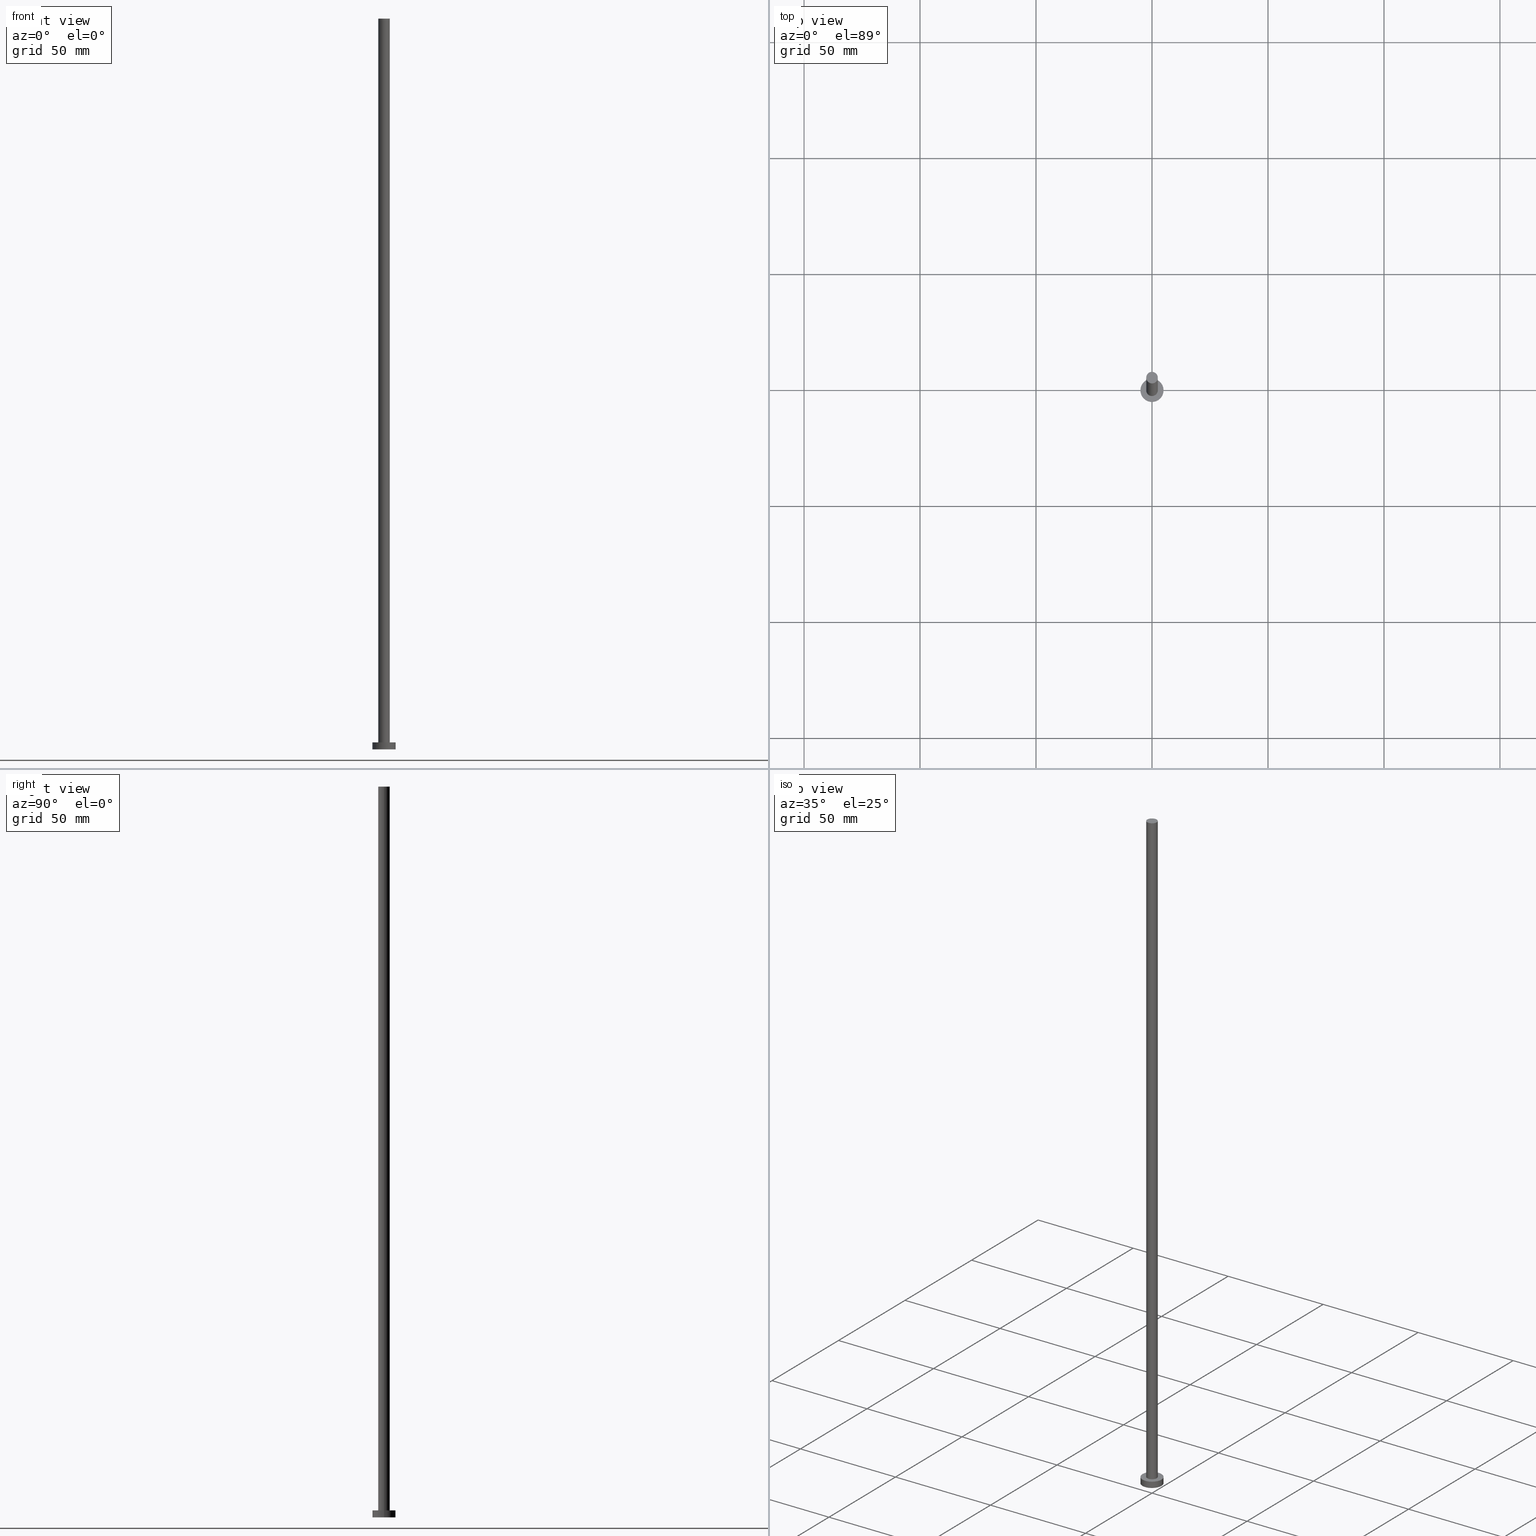
[diagram: canonical four-view strip — front | top / right | iso, engineering-drawing reading convention]
A machine part, canonical four-view strip (front | top / right | iso — engineering-drawing reading convention). The complete STEP part file that produces these views, byte-faithful:
ISO-10303-21;
HEADER;
FILE_DESCRIPTION (( 'STEP AP203' ),
    '1' );
FILE_NAME ('dc91.STEP',
    '2023-02-13T15:50:16',
    ( '' ),
    ( '' ),
    'SwSTEP 2.0',
    'SolidWorks 2019',
    '' );
FILE_SCHEMA (( 'CONFIG_CONTROL_DESIGN' ));
ENDSEC;

DATA;
#1 = ORIENTED_EDGE ( 'NONE', *, *, #207, .F. ) ;
#2 = EDGE_CURVE ( 'NONE', #199, #202, #170, .T. ) ;
#3 = FACE_OUTER_BOUND ( 'NONE', #7, .T. ) ;
#4 = AXIS2_PLACEMENT_3D ( 'NONE', #159, #116, #31 ) ;
#5 = DIRECTION ( 'NONE',  ( 0.000000000000000000, 0.000000000000000000, 1.000000000000000000 ) ) ;
#6 = AXIS2_PLACEMENT_3D ( 'NONE', #20, #241, #100 ) ;
#7 = EDGE_LOOP ( 'NONE', ( #255, #228, #233, #167 ) ) ;
#8 = EDGE_LOOP ( 'NONE', ( #81, #38 ) ) ;
#9 = PERSON_AND_ORGANIZATION ( #82, #47 ) ;
#10 = EDGE_CURVE ( 'NONE', #72, #244, #45, .T. ) ;
#11 = LOCAL_TIME ( 16, 50, 16.00000000000000000, #33 ) ;
#12 = EDGE_LOOP ( 'NONE', ( #87, #50 ) ) ;
#13 = FACE_BOUND ( 'NONE', #12, .T. ) ;
#14 = COORDINATED_UNIVERSAL_TIME_OFFSET ( 1, 0, .AHEAD. ) ;
#15 = DIRECTION ( 'NONE',  ( 1.000000000000000000, 0.000000000000000000, -0.000000000000000000 ) ) ;
#16 = PERSON_AND_ORGANIZATION_ROLE ( 'creator' ) ;
#17 = DIRECTION ( 'NONE',  ( 0.000000000000000000, 0.000000000000000000, 1.000000000000000000 ) ) ;
#18 = CYLINDRICAL_SURFACE ( 'NONE', #149, 2.500000000000000000 ) ;
#19 = AXIS2_PLACEMENT_3D ( 'NONE', #254, #78, #195 ) ;
#20 = CARTESIAN_POINT ( 'NONE',  ( 0.000000000000000000, 0.000000000000000000, 3.000000000000000000 ) ) ;
#21 = AXIS2_PLACEMENT_3D ( 'NONE', #201, #71, #128 ) ;
#22 = EDGE_CURVE ( 'NONE', #29, #244, #193, .T. ) ;
#23 = DIRECTION ( 'NONE',  ( 1.000000000000000000, 0.000000000000000000, 0.000000000000000000 ) ) ;
#24 = CIRCLE ( 'NONE', #80, 5.000000000000000000 ) ;
#25 = DATE_AND_TIME ( #197, #251 ) ;
#26 = ORIENTED_EDGE ( 'NONE', *, *, #164, .F. ) ;
#27 = PERSON_AND_ORGANIZATION_ROLE ( 'design_owner' ) ;
#28 = ORIENTED_EDGE ( 'NONE', *, *, #22, .F. ) ;
#29 = VERTEX_POINT ( 'NONE', #61 ) ;
#30 = PERSON_AND_ORGANIZATION ( #82, #47 ) ;
#31 = DIRECTION ( 'NONE',  ( 1.000000000000000000, 0.000000000000000000, 0.000000000000000000 ) ) ;
#32 = ADVANCED_FACE ( 'NONE', ( #190 ), #18, .T. ) ;
#33 = COORDINATED_UNIVERSAL_TIME_OFFSET ( 1, 0, .AHEAD. ) ;
#34 = EDGE_LOOP ( 'NONE', ( #46, #105 ) ) ;
#35 = PLANE ( 'NONE',  #178 ) ;
#36 = SECURITY_CLASSIFICATION_LEVEL ( 'unclassified' ) ;
#37 = ADVANCED_FACE ( 'NONE', ( #13, #58 ), #35, .T. ) ;
#38 = ORIENTED_EDGE ( 'NONE', *, *, #60, .F. ) ;
#39 = DIRECTION ( 'NONE',  ( -0.000000000000000000, -0.000000000000000000, -1.000000000000000000 ) ) ;
#40 = CARTESIAN_POINT ( 'NONE',  ( -2.500000000000000000, 0.000000000000000000, 315.0000000000000000 ) ) ;
#41 = APPROVAL_PERSON_ORGANIZATION ( #156, #117, #206 ) ;
#42 = CC_DESIGN_DATE_AND_TIME_ASSIGNMENT ( #77, #191, ( #91 ) ) ;
#43 = DIRECTION ( 'NONE',  ( 0.000000000000000000, 0.000000000000000000, 1.000000000000000000 ) ) ;
#44 = ORIENTED_EDGE ( 'NONE', *, *, #10, .T. ) ;
#45 = CIRCLE ( 'NONE', #4, 2.500000000000000000 ) ;
#46 = ORIENTED_EDGE ( 'NONE', *, *, #2, .T. ) ;
#47 = ORGANIZATION ( 'NEUR�EN�', 'NEUR�EN�', '' ) ;
#48 = DESIGN_CONTEXT ( 'detailed design', #121, 'design' ) ;
#49 = DIRECTION ( 'NONE',  ( -1.000000000000000000, 0.000000000000000000, 0.000000000000000000 ) ) ;
#50 = ORIENTED_EDGE ( 'NONE', *, *, #108, .F. ) ;
#51 = CC_DESIGN_DATE_AND_TIME_ASSIGNMENT ( #132, #94, ( #98 ) ) ;
#52 = PLANE ( 'NONE',  #21 ) ;
#53 = APPLICATION_CONTEXT ( 'configuration controlled 3d designs of mechanical parts and assemblies' ) ;
#54 = APPROVAL_STATUS ( 'not_yet_approved' ) ;
#55 = DIRECTION ( 'NONE',  ( 1.000000000000000000, 0.000000000000000000, 0.000000000000000000 ) ) ;
#56 = CARTESIAN_POINT ( 'NONE',  ( 5.000000000000000000, 6.123233995736766282E-16, 0.000000000000000000 ) ) ;
#57 = CALENDAR_DATE ( 2023, 13, 2 ) ;
#58 = FACE_OUTER_BOUND ( 'NONE', #34, .T. ) ;
#59 = COORDINATED_UNIVERSAL_TIME_OFFSET ( 1, 0, .AHEAD. ) ;
#60 = EDGE_CURVE ( 'NONE', #124, #126, #84, .T. ) ;
#61 = CARTESIAN_POINT ( 'NONE',  ( 2.500000000000000000, 3.061616997868383141E-16, 315.0000000000000000 ) ) ;
#62 = PLANE ( 'NONE',  #242 ) ;
#63 = CIRCLE ( 'NONE', #189, 2.500000000000000000 ) ;
#64 = CC_DESIGN_APPROVAL ( #96, ( #86 ) ) ;
#65 = DIRECTION ( 'NONE',  ( 1.000000000000000000, 0.000000000000000000, 0.000000000000000000 ) ) ;
#66 = EDGE_CURVE ( 'NONE', #29, #146, #161, .T. ) ;
#67 = CARTESIAN_POINT ( 'NONE',  ( -5.000000000000000000, 0.000000000000000000, 3.000000000000000000 ) ) ;
#68 = PERSON_AND_ORGANIZATION ( #82, #47 ) ;
#69 = ORIENTED_EDGE ( 'NONE', *, *, #106, .T. ) ;
#70 = DIRECTION ( 'NONE',  ( -0.000000000000000000, -0.000000000000000000, -1.000000000000000000 ) ) ;
#71 = DIRECTION ( 'NONE',  ( 0.000000000000000000, 0.000000000000000000, 1.000000000000000000 ) ) ;
#72 = VERTEX_POINT ( 'NONE', #114 ) ;
#73 = PERSON_AND_ORGANIZATION ( #82, #47 ) ;
#74 = DIRECTION ( 'NONE',  ( 0.000000000000000000, 0.000000000000000000, 1.000000000000000000 ) ) ;
#75 = CALENDAR_DATE ( 2023, 13, 2 ) ;
#76 = CARTESIAN_POINT ( 'NONE',  ( 0.000000000000000000, 0.000000000000000000, 0.000000000000000000 ) ) ;
#77 = DATE_AND_TIME ( #113, #107 ) ;
#78 = DIRECTION ( 'NONE',  ( 0.000000000000000000, 0.000000000000000000, 1.000000000000000000 ) ) ;
#79 = ORIENTED_EDGE ( 'NONE', *, *, #60, .T. ) ;
#80 = AXIS2_PLACEMENT_3D ( 'NONE', #120, #5, #215 ) ;
#81 = ORIENTED_EDGE ( 'NONE', *, *, #200, .F. ) ;
#82 = PERSON ( 'NEUR�EN�', 'NEUR�EN�', 'NEUR�EN�', ('NEUR�EN�'), ('NEUR�EN�'), ('NEUR�EN�') ) ;
#83 = CARTESIAN_POINT ( 'NONE',  ( 0.000000000000000000, 0.000000000000000000, 315.0000000000000000 ) ) ;
#84 = CIRCLE ( 'NONE', #92, 5.000000000000000000 ) ;
#85 = CYLINDRICAL_SURFACE ( 'NONE', #90, 5.000000000000000000 ) ;
#86 = PRODUCT_DEFINITION_FORMATION_WITH_SPECIFIED_SOURCE ( 'LIBOVOLN�', '', #208, .NOT_KNOWN. ) ;
#87 = ORIENTED_EDGE ( 'NONE', *, *, #10, .F. ) ;
#88 = EDGE_CURVE ( 'NONE', #199, #126, #173, .T. ) ;
#89 = ORIENTED_EDGE ( 'NONE', *, *, #66, .T. ) ;
#90 = AXIS2_PLACEMENT_3D ( 'NONE', #162, #183, #102 ) ;
#91 = PRODUCT_DEFINITION ( 'NEZN�M�', '', #86, #48 ) ;
#92 = AXIS2_PLACEMENT_3D ( 'NONE', #76, #93, #179 ) ;
#93 = DIRECTION ( 'NONE',  ( 0.000000000000000000, 0.000000000000000000, 1.000000000000000000 ) ) ;
#94 = DATE_TIME_ROLE ( 'classification_date' ) ;
#95 = CARTESIAN_POINT ( 'NONE',  ( 0.000000000000000000, 0.000000000000000000, 315.0000000000000000 ) ) ;
#96 = APPROVAL ( #54, 'NEUR�EN�' ) ;
#97 = DIRECTION ( 'NONE',  ( -0.000000000000000000, -0.000000000000000000, -1.000000000000000000 ) ) ;
#98 = SECURITY_CLASSIFICATION ( '', '', #36 ) ;
#99 = CC_DESIGN_PERSON_AND_ORGANIZATION_ASSIGNMENT ( #73, #150, ( #98 ) ) ;
#100 = DIRECTION ( 'NONE',  ( -1.000000000000000000, 0.000000000000000000, 0.000000000000000000 ) ) ;
#101 = VECTOR ( 'NONE', #133, 1000.000000000000000 ) ;
#102 = DIRECTION ( 'NONE',  ( -1.000000000000000000, 0.000000000000000000, 0.000000000000000000 ) ) ;
#103 = CC_DESIGN_APPROVAL ( #131, ( #91 ) ) ;
#104 = CARTESIAN_POINT ( 'NONE',  ( 0.000000000000000000, 0.000000000000000000, 3.000000000000000000 ) ) ;
#105 = ORIENTED_EDGE ( 'NONE', *, *, #207, .T. ) ;
#106 = EDGE_CURVE ( 'NONE', #202, #124, #155, .T. ) ;
#107 = LOCAL_TIME ( 16, 50, 16.00000000000000000, #154 ) ;
#108 = EDGE_CURVE ( 'NONE', #244, #72, #63, .T. ) ;
#109 = CARTESIAN_POINT ( 'NONE',  ( 0.000000000000000000, 0.000000000000000000, 3.000000000000000000 ) ) ;
#110 = PERSON_AND_ORGANIZATION ( #82, #47 ) ;
#111 = DIRECTION ( 'NONE',  ( -0.000000000000000000, -0.000000000000000000, -1.000000000000000000 ) ) ;
#112 = DIRECTION ( 'NONE',  ( 0.000000000000000000, 0.000000000000000000, 1.000000000000000000 ) ) ;
#113 = CALENDAR_DATE ( 2023, 13, 2 ) ;
#114 = CARTESIAN_POINT ( 'NONE',  ( -2.500000000000000000, 0.000000000000000000, 3.000000000000000000 ) ) ;
#115 = DATE_AND_TIME ( #57, #240 ) ;
#116 = DIRECTION ( 'NONE',  ( 0.000000000000000000, 0.000000000000000000, 1.000000000000000000 ) ) ;
#117 = APPROVAL ( #234, 'NEUR�EN�' ) ;
#118 = LINE ( 'NONE', #40, #152 ) ;
#119 = PRODUCT_RELATED_PRODUCT_CATEGORY ( 'detail', '', ( #208 ) ) ;
#120 = CARTESIAN_POINT ( 'NONE',  ( 0.000000000000000000, 0.000000000000000000, 0.000000000000000000 ) ) ;
#121 = APPLICATION_CONTEXT ( 'configuration controlled 3d designs of mechanical parts and assemblies' ) ;
#122 = CARTESIAN_POINT ( 'NONE',  ( 5.000000000000000000, 6.123233995736766282E-16, 3.000000000000000000 ) ) ;
#123 =( NAMED_UNIT ( * ) SI_UNIT ( $, .STERADIAN. ) SOLID_ANGLE_UNIT ( ) );
#124 = VERTEX_POINT ( 'NONE', #56 ) ;
#125 = COORDINATED_UNIVERSAL_TIME_OFFSET ( 1, 0, .AHEAD. ) ;
#126 = VERTEX_POINT ( 'NONE', #209 ) ;
#127 = EDGE_CURVE ( 'NONE', #146, #29, #196, .T. ) ;
#128 = DIRECTION ( 'NONE',  ( 1.000000000000000000, 0.000000000000000000, -0.000000000000000000 ) ) ;
#129 = EDGE_LOOP ( 'NONE', ( #28, #212, #186, #44 ) ) ;
#130 = AXIS2_PLACEMENT_3D ( 'NONE', #137, #17, #55 ) ;
#131 = APPROVAL ( #145, 'NEUR�EN�' ) ;
#132 = DATE_AND_TIME ( #229, #246 ) ;
#133 = DIRECTION ( 'NONE',  ( -0.000000000000000000, -0.000000000000000000, -1.000000000000000000 ) ) ;
#134 = CARTESIAN_POINT ( 'NONE',  ( 0.000000000000000000, 0.000000000000000000, 3.000000000000000000 ) ) ;
#135 = APPROVAL_DATE_TIME ( #115, #117 ) ;
#136 = APPROVAL_DATE_TIME ( #253, #96 ) ;
#137 = CARTESIAN_POINT ( 'NONE',  ( 0.000000000000000000, 0.000000000000000000, 315.0000000000000000 ) ) ;
#138 = ADVANCED_FACE ( 'NONE', ( #142 ), #219, .T. ) ;
#139 = DIRECTION ( 'NONE',  ( 1.000000000000000000, 0.000000000000000000, -0.000000000000000000 ) ) ;
#140 = FACE_OUTER_BOUND ( 'NONE', #185, .T. ) ;
#141 = CC_DESIGN_PERSON_AND_ORGANIZATION_ASSIGNMENT ( #230, #16, ( #91 ) ) ;
#142 = FACE_OUTER_BOUND ( 'NONE', #235, .T. ) ;
#143 = CC_DESIGN_SECURITY_CLASSIFICATION ( #98, ( #86 ) ) ;
#144 = MECHANICAL_CONTEXT ( 'NONE', #53, 'mechanical' ) ;
#145 = APPROVAL_STATUS ( 'not_yet_approved' ) ;
#146 = VERTEX_POINT ( 'NONE', #181 ) ;
#147 = CYLINDRICAL_SURFACE ( 'NONE', #163, 2.500000000000000000 ) ;
#148 = CARTESIAN_POINT ( 'NONE',  ( 2.500000000000000000, 3.061616997868383141E-16, 3.000000000000000000 ) ) ;
#149 = AXIS2_PLACEMENT_3D ( 'NONE', #95, #111, #237 ) ;
#150 = PERSON_AND_ORGANIZATION_ROLE ( 'classification_officer' ) ;
#151 = EDGE_LOOP ( 'NONE', ( #157, #89 ) ) ;
#152 = VECTOR ( 'NONE', #39, 1000.000000000000000 ) ;
#153 = MANIFOLD_SOLID_BREP ( 'P�idat vysunut�m3', #182 ) ;
#154 = COORDINATED_UNIVERSAL_TIME_OFFSET ( 1, 0, .AHEAD. ) ;
#155 = LINE ( 'NONE', #192, #245 ) ;
#156 = PERSON_AND_ORGANIZATION ( #82, #47 ) ;
#157 = ORIENTED_EDGE ( 'NONE', *, *, #127, .T. ) ;
#158 = CC_DESIGN_APPROVAL ( #117, ( #98 ) ) ;
#159 = CARTESIAN_POINT ( 'NONE',  ( 0.000000000000000000, 0.000000000000000000, 3.000000000000000000 ) ) ;
#160 = DIRECTION ( 'NONE',  ( 0.000000000000000000, 0.000000000000000000, 1.000000000000000000 ) ) ;
#161 = CIRCLE ( 'NONE', #130, 2.500000000000000000 ) ;
#162 = CARTESIAN_POINT ( 'NONE',  ( 0.000000000000000000, 0.000000000000000000, 3.000000000000000000 ) ) ;
#163 = AXIS2_PLACEMENT_3D ( 'NONE', #247, #70, #49 ) ;
#164 = EDGE_CURVE ( 'NONE', #146, #72, #118, .T. ) ;
#165 =( NAMED_UNIT ( * ) PLANE_ANGLE_UNIT ( ) SI_UNIT ( $, .RADIAN. ) );
#166 = CC_DESIGN_PERSON_AND_ORGANIZATION_ASSIGNMENT ( #110, #176, ( #86 ) ) ;
#167 = ORIENTED_EDGE ( 'NONE', *, *, #200, .T. ) ;
#168 = CARTESIAN_POINT ( 'NONE',  ( 0.000000000000000000, 0.000000000000000000, 0.000000000000000000 ) ) ;
#169 = AXIS2_PLACEMENT_3D ( 'NONE', #104, #238, #65 ) ;
#170 = CIRCLE ( 'NONE', #218, 5.000000000000000000 ) ;
#171 = PRODUCT_DEFINITION_SHAPE ( 'NONE', 'NONE',  #91 ) ;
#172 = PERSON_AND_ORGANIZATION_ROLE ( 'creator' ) ;
#173 = LINE ( 'NONE', #250, #101 ) ;
#174 =( GEOMETRIC_REPRESENTATION_CONTEXT ( 3 ) GLOBAL_UNCERTAINTY_ASSIGNED_CONTEXT ( ( #223 ) ) GLOBAL_UNIT_ASSIGNED_CONTEXT ( ( #184, #165, #123 ) ) REPRESENTATION_CONTEXT ( 'NONE', 'WORKASPACE' ) );
#175 = DIRECTION ( 'NONE',  ( -0.000000000000000000, -0.000000000000000000, -1.000000000000000000 ) ) ;
#176 = PERSON_AND_ORGANIZATION_ROLE ( 'design_supplier' ) ;
#177 = CARTESIAN_POINT ( 'NONE',  ( 0.000000000000000000, 0.000000000000000000, 3.000000000000000000 ) ) ;
#178 = AXIS2_PLACEMENT_3D ( 'NONE', #109, #188, #15 ) ;
#179 = DIRECTION ( 'NONE',  ( 1.000000000000000000, 0.000000000000000000, 0.000000000000000000 ) ) ;
#180 = FACE_OUTER_BOUND ( 'NONE', #151, .T. ) ;
#181 = CARTESIAN_POINT ( 'NONE',  ( -2.500000000000000000, 0.000000000000000000, 315.0000000000000000 ) ) ;
#182 = CLOSED_SHELL ( 'NONE', ( #236, #138, #227, #37, #239, #32, #217 ) ) ;
#183 = DIRECTION ( 'NONE',  ( -0.000000000000000000, -0.000000000000000000, -1.000000000000000000 ) ) ;
#184 =( LENGTH_UNIT ( ) NAMED_UNIT ( * ) SI_UNIT ( .MILLI., .METRE. ) );
#185 = EDGE_LOOP ( 'NONE', ( #248, #226, #205, #26 ) ) ;
#186 = ORIENTED_EDGE ( 'NONE', *, *, #164, .T. ) ;
#187 = CC_DESIGN_PERSON_AND_ORGANIZATION_ASSIGNMENT ( #9, #27, ( #208 ) ) ;
#188 = DIRECTION ( 'NONE',  ( 0.000000000000000000, 0.000000000000000000, 1.000000000000000000 ) ) ;
#189 = AXIS2_PLACEMENT_3D ( 'NONE', #177, #74, #231 ) ;
#190 = FACE_OUTER_BOUND ( 'NONE', #129, .T. ) ;
#191 = DATE_TIME_ROLE ( 'creation_date' ) ;
#192 = CARTESIAN_POINT ( 'NONE',  ( 5.000000000000000000, 6.123233995736766282E-16, 3.000000000000000000 ) ) ;
#193 = LINE ( 'NONE', #213, #210 ) ;
#194 = CC_DESIGN_PERSON_AND_ORGANIZATION_ASSIGNMENT ( #30, #172, ( #86 ) ) ;
#195 = DIRECTION ( 'NONE',  ( 1.000000000000000000, 0.000000000000000000, 0.000000000000000000 ) ) ;
#196 = CIRCLE ( 'NONE', #19, 2.500000000000000000 ) ;
#197 = CALENDAR_DATE ( 2023, 13, 2 ) ;
#198 = APPROVAL_PERSON_ORGANIZATION ( #252, #96, #211 ) ;
#199 = VERTEX_POINT ( 'NONE', #67 ) ;
#200 = EDGE_CURVE ( 'NONE', #126, #124, #24, .T. ) ;
#201 = CARTESIAN_POINT ( 'NONE',  ( 0.000000000000000000, 0.000000000000000000, 0.000000000000000000 ) ) ;
#202 = VERTEX_POINT ( 'NONE', #122 ) ;
#203 = APPLICATION_PROTOCOL_DEFINITION ( 'international standard', 'config_control_design', 1994, #53 ) ;
#204 = ADVANCED_BREP_SHAPE_REPRESENTATION ( 'dc91', ( #153, #225 ), #174 ) ;
#205 = ORIENTED_EDGE ( 'NONE', *, *, #108, .T. ) ;
#206 = APPROVAL_ROLE ( '' ) ;
#207 = EDGE_CURVE ( 'NONE', #202, #199, #220, .T. ) ;
#208 = PRODUCT ( 'dc91', 'dc91', '', ( #144 ) ) ;
#209 = CARTESIAN_POINT ( 'NONE',  ( -5.000000000000000000, 0.000000000000000000, 0.000000000000000000 ) ) ;
#210 = VECTOR ( 'NONE', #175, 1000.000000000000000 ) ;
#211 = APPROVAL_ROLE ( '' ) ;
#212 = ORIENTED_EDGE ( 'NONE', *, *, #127, .F. ) ;
#213 = CARTESIAN_POINT ( 'NONE',  ( 2.500000000000000000, 3.061616997868383141E-16, 315.0000000000000000 ) ) ;
#214 = DIRECTION ( 'NONE',  ( 1.000000000000000000, 0.000000000000000000, 0.000000000000000000 ) ) ;
#215 = DIRECTION ( 'NONE',  ( 1.000000000000000000, 0.000000000000000000, 0.000000000000000000 ) ) ;
#216 = APPROVAL_PERSON_ORGANIZATION ( #68, #131, #221 ) ;
#217 = ADVANCED_FACE ( 'NONE', ( #180 ), #62, .T. ) ;
#218 = AXIS2_PLACEMENT_3D ( 'NONE', #134, #112, #214 ) ;
#219 = CYLINDRICAL_SURFACE ( 'NONE', #6, 5.000000000000000000 ) ;
#220 = CIRCLE ( 'NONE', #169, 5.000000000000000000 ) ;
#221 = APPROVAL_ROLE ( '' ) ;
#222 = ORIENTED_EDGE ( 'NONE', *, *, #88, .F. ) ;
#223 = UNCERTAINTY_MEASURE_WITH_UNIT (LENGTH_MEASURE( 1.000000000000000082E-05 ), #184, 'distance_accuracy_value', 'NONE');
#224 = FACE_OUTER_BOUND ( 'NONE', #8, .T. ) ;
#225 = AXIS2_PLACEMENT_3D ( 'NONE', #168, #43, #23 ) ;
#226 = ORIENTED_EDGE ( 'NONE', *, *, #22, .T. ) ;
#227 = ADVANCED_FACE ( 'NONE', ( #3 ), #85, .T. ) ;
#228 = ORIENTED_EDGE ( 'NONE', *, *, #2, .F. ) ;
#229 = CALENDAR_DATE ( 2023, 13, 2 ) ;
#230 = PERSON_AND_ORGANIZATION ( #82, #47 ) ;
#231 = DIRECTION ( 'NONE',  ( 1.000000000000000000, 0.000000000000000000, 0.000000000000000000 ) ) ;
#232 = APPROVAL_DATE_TIME ( #25, #131 ) ;
#233 = ORIENTED_EDGE ( 'NONE', *, *, #88, .T. ) ;
#234 = APPROVAL_STATUS ( 'not_yet_approved' ) ;
#235 = EDGE_LOOP ( 'NONE', ( #1, #69, #79, #222 ) ) ;
#236 = ADVANCED_FACE ( 'NONE', ( #140 ), #147, .T. ) ;
#237 = DIRECTION ( 'NONE',  ( -1.000000000000000000, 0.000000000000000000, 0.000000000000000000 ) ) ;
#238 = DIRECTION ( 'NONE',  ( 0.000000000000000000, 0.000000000000000000, 1.000000000000000000 ) ) ;
#239 = ADVANCED_FACE ( 'NONE', ( #224 ), #52, .F. ) ;
#240 = LOCAL_TIME ( 16, 50, 16.00000000000000000, #59 ) ;
#241 = DIRECTION ( 'NONE',  ( -0.000000000000000000, -0.000000000000000000, -1.000000000000000000 ) ) ;
#242 = AXIS2_PLACEMENT_3D ( 'NONE', #83, #160, #139 ) ;
#243 = APPLICATION_PROTOCOL_DEFINITION ( 'international standard', 'config_control_design', 1994, #121 ) ;
#244 = VERTEX_POINT ( 'NONE', #148 ) ;
#245 = VECTOR ( 'NONE', #97, 1000.000000000000000 ) ;
#246 = LOCAL_TIME ( 16, 50, 16.00000000000000000, #14 ) ;
#247 = CARTESIAN_POINT ( 'NONE',  ( 0.000000000000000000, 0.000000000000000000, 315.0000000000000000 ) ) ;
#248 = ORIENTED_EDGE ( 'NONE', *, *, #66, .F. ) ;
#249 = SHAPE_DEFINITION_REPRESENTATION ( #171, #204 ) ;
#250 = CARTESIAN_POINT ( 'NONE',  ( -5.000000000000000000, 0.000000000000000000, 3.000000000000000000 ) ) ;
#251 = LOCAL_TIME ( 16, 50, 16.00000000000000000, #125 ) ;
#252 = PERSON_AND_ORGANIZATION ( #82, #47 ) ;
#253 = DATE_AND_TIME ( #75, #11 ) ;
#254 = CARTESIAN_POINT ( 'NONE',  ( 0.000000000000000000, 0.000000000000000000, 315.0000000000000000 ) ) ;
#255 = ORIENTED_EDGE ( 'NONE', *, *, #106, .F. ) ;
ENDSEC;
END-ISO-10303-21;
